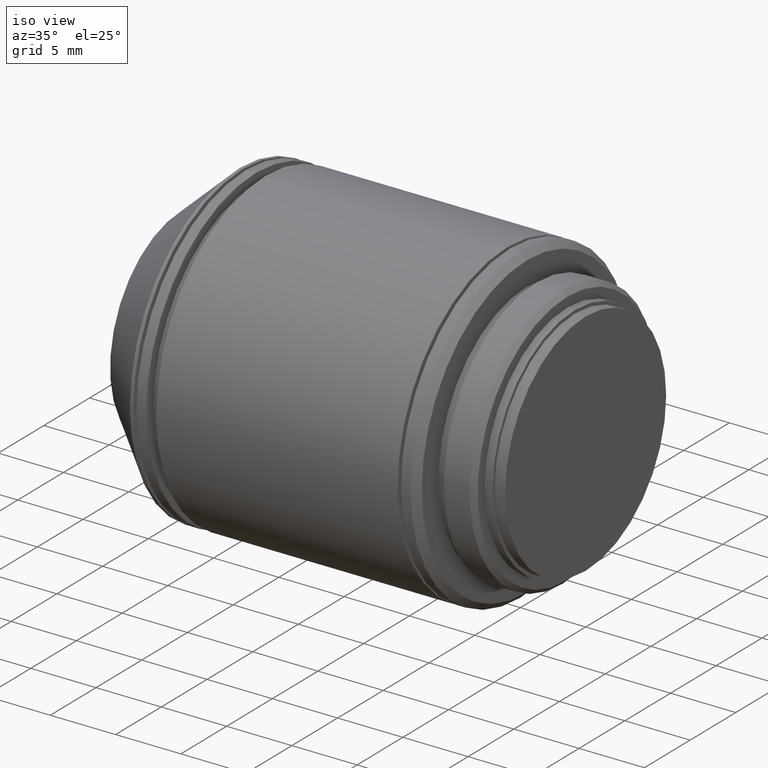
[diagram: clean part render]
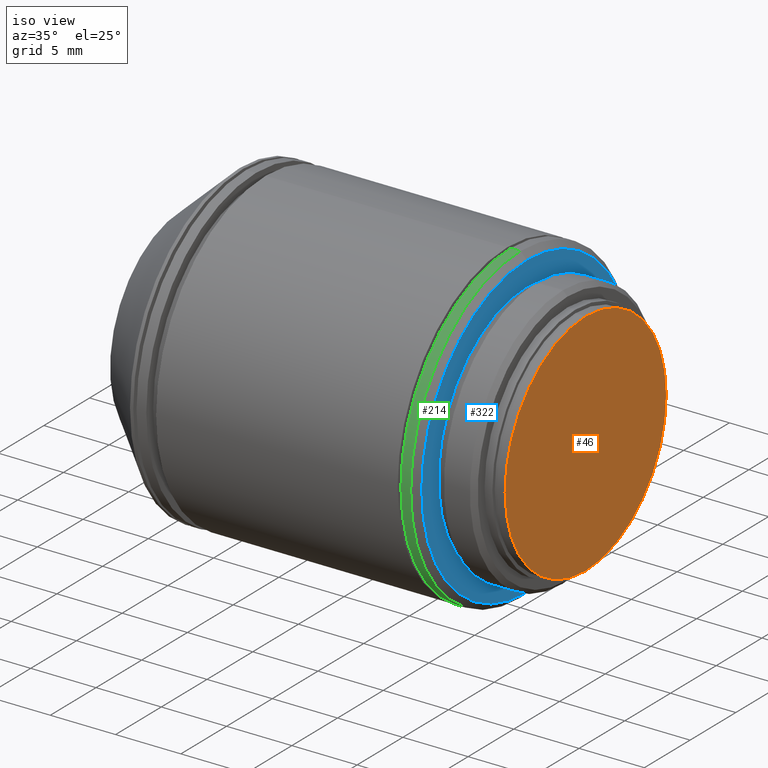
[diagram: same view with three faces highlighted in distinct colors, each labeled with its STEP entity id]
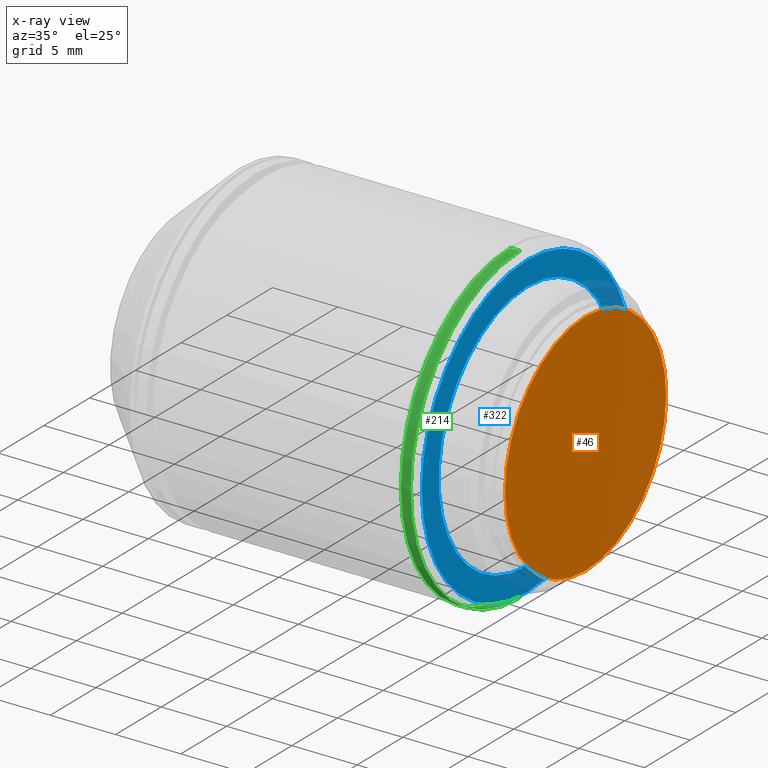
[diagram: x-ray of the same camera — body ghosted, the three highlighted faces saturated]
A machine part, iso view with three faces highlighted in distinct colors.
The next image is the same camera in x-ray (body ghosted, the three faces saturated) — at least one of them is partly hidden behind the body in this view.
Their STEP definitions:

[orange] entity #46 — the highlighted planar face has unit normal (1, 0, 0).
#6 = AXIS2_PLACEMENT_3D ( 'NONE', #924, #814, #827 ) ;
#46 = ADVANCED_FACE ( 'NONE', ( #1005 ), #1090, .T. ) ;
#65 = VERTEX_POINT ( 'NONE', #1102 ) ;
#67 = CARTESIAN_POINT ( 'NONE',  ( 0.000000000000000000, 0.000000000000000000, 0.000000000000000000 ) ) ;
#73 = EDGE_CURVE ( 'NONE', #65, #888, #719, .T. ) ;
#129 = AXIS2_PLACEMENT_3D ( 'NONE', #480, #654, #496 ) ;
#145 = CIRCLE ( 'NONE', #129, 8.810000000000000497 ) ;
#229 = AXIS2_PLACEMENT_3D ( 'NONE', #67, #592, #948 ) ;
#366 = EDGE_LOOP ( 'NONE', ( #940, #563 ) ) ;
#480 = CARTESIAN_POINT ( 'NONE',  ( 0.000000000000000000, 0.000000000000000000, 0.000000000000000000 ) ) ;
#496 = DIRECTION ( 'NONE',  ( 0.000000000000000000, 0.000000000000000000, -1.000000000000000000 ) ) ;
#563 = ORIENTED_EDGE ( 'NONE', *, *, #73, .T. ) ;
#592 = DIRECTION ( 'NONE',  ( 1.000000000000000000, 0.000000000000000000, 0.000000000000000000 ) ) ;
#654 = DIRECTION ( 'NONE',  ( 1.000000000000000000, 0.000000000000000000, 0.000000000000000000 ) ) ;
#719 = CIRCLE ( 'NONE', #229, 8.810000000000000497 ) ;
#814 = DIRECTION ( 'NONE',  ( 1.000000000000000000, 0.000000000000000000, 0.000000000000000000 ) ) ;
#827 = DIRECTION ( 'NONE',  ( 0.000000000000000000, 1.000000000000000000, 0.000000000000000000 ) ) ;
#888 = VERTEX_POINT ( 'NONE', #920 ) ;
#920 = CARTESIAN_POINT ( 'NONE',  ( 0.000000000000000000, 0.000000000000000000, -8.810000000000000497 ) ) ;
#924 = CARTESIAN_POINT ( 'NONE',  ( -8.887111647172880151E-16, 8.810000000000000497, 0.000000000000000000 ) ) ;
#932 = EDGE_CURVE ( 'NONE', #888, #65, #145, .T. ) ;
#940 = ORIENTED_EDGE ( 'NONE', *, *, #932, .T. ) ;
#948 = DIRECTION ( 'NONE',  ( 0.000000000000000000, 0.000000000000000000, -1.000000000000000000 ) ) ;
#1005 = FACE_OUTER_BOUND ( 'NONE', #366, .T. ) ;
#1090 = PLANE ( 'NONE',  #6 ) ;
#1102 = CARTESIAN_POINT ( 'NONE',  ( 0.000000000000000000, 1.078913830048819953E-15, 8.810000000000000497 ) ) ;

[blue] entity #322 — the highlighted planar face has unit normal (1, 0, 0).
#26 = CIRCLE ( 'NONE', #235, 11.50000000000000000 ) ;
#41 = CIRCLE ( 'NONE', #290, 9.660000000000000142 ) ;
#47 = CARTESIAN_POINT ( 'NONE',  ( -4.500000000000000000, 0.000000000000000000, 0.000000000000000000 ) ) ;
#68 = DIRECTION ( 'NONE',  ( 1.000000000000000000, 0.000000000000000000, 0.000000000000000000 ) ) ;
#104 = VERTEX_POINT ( 'NONE', #228 ) ;
#110 = EDGE_LOOP ( 'NONE', ( #475, #1088 ) ) ;
#150 = DIRECTION ( 'NONE',  ( 0.000000000000000000, 1.000000000000000000, 0.000000000000000000 ) ) ;
#151 = DIRECTION ( 'NONE',  ( 0.000000000000000000, 0.000000000000000000, -1.000000000000000000 ) ) ;
#172 = ORIENTED_EDGE ( 'NONE', *, *, #443, .T. ) ;
#223 = FACE_BOUND ( 'NONE', #110, .T. ) ;
#228 = CARTESIAN_POINT ( 'NONE',  ( -4.500000000000000000, 0.000000000000000000, 11.50000000000000000 ) ) ;
#235 = AXIS2_PLACEMENT_3D ( 'NONE', #857, #936, #151 ) ;
#258 = CARTESIAN_POINT ( 'NONE',  ( -4.500000000000000000, 1.183008807976341910E-15, 9.660000000000000142 ) ) ;
#268 = AXIS2_PLACEMENT_3D ( 'NONE', #1091, #293, #907 ) ;
#290 = AXIS2_PLACEMENT_3D ( 'NONE', #502, #68, #441 ) ;
#293 = DIRECTION ( 'NONE',  ( 1.000000000000000000, 0.000000000000000000, 0.000000000000000000 ) ) ;
#302 = DIRECTION ( 'NONE',  ( 0.000000000000000000, 0.000000000000000000, -1.000000000000000000 ) ) ;
#307 = DIRECTION ( 'NONE',  ( 1.000000000000000000, 0.000000000000000000, 0.000000000000000000 ) ) ;
#312 = EDGE_CURVE ( 'NONE', #1026, #561, #776, .T. ) ;
#320 = CIRCLE ( 'NONE', #730, 11.50000000000000000 ) ;
#322 = ADVANCED_FACE ( 'NONE', ( #1070, #223 ), #573, .T. ) ;
#334 = CARTESIAN_POINT ( 'NONE',  ( -4.500000000000000000, 0.000000000000000000, -9.660000000000000142 ) ) ;
#373 = CARTESIAN_POINT ( 'NONE',  ( -4.500000000000000000, 1.438959988998139963E-15, -11.50000000000000000 ) ) ;
#391 = DIRECTION ( 'NONE',  ( 1.000000000000000000, 0.000000000000000000, 0.000000000000000000 ) ) ;
#441 = DIRECTION ( 'NONE',  ( 0.000000000000000000, 0.000000000000000000, -1.000000000000000000 ) ) ;
#443 = EDGE_CURVE ( 'NONE', #766, #104, #320, .T. ) ;
#475 = ORIENTED_EDGE ( 'NONE', *, *, #607, .F. ) ;
#500 = CARTESIAN_POINT ( 'NONE',  ( -4.500000000000000000, 11.50000000000000000, 0.000000000000000000 ) ) ;
#502 = CARTESIAN_POINT ( 'NONE',  ( -4.500000000000000000, 0.000000000000000000, 0.000000000000000000 ) ) ;
#513 = EDGE_LOOP ( 'NONE', ( #703, #172 ) ) ;
#561 = VERTEX_POINT ( 'NONE', #334 ) ;
#573 = PLANE ( 'NONE',  #928 ) ;
#607 = EDGE_CURVE ( 'NONE', #561, #1026, #41, .T. ) ;
#703 = ORIENTED_EDGE ( 'NONE', *, *, #1104, .T. ) ;
#730 = AXIS2_PLACEMENT_3D ( 'NONE', #47, #391, #302 ) ;
#766 = VERTEX_POINT ( 'NONE', #373 ) ;
#776 = CIRCLE ( 'NONE', #268, 9.660000000000000142 ) ;
#857 = CARTESIAN_POINT ( 'NONE',  ( -4.500000000000000000, 0.000000000000000000, 0.000000000000000000 ) ) ;
#907 = DIRECTION ( 'NONE',  ( 0.000000000000000000, 0.000000000000000000, -1.000000000000000000 ) ) ;
#928 = AXIS2_PLACEMENT_3D ( 'NONE', #500, #307, #150 ) ;
#936 = DIRECTION ( 'NONE',  ( 1.000000000000000000, 0.000000000000000000, 0.000000000000000000 ) ) ;
#1026 = VERTEX_POINT ( 'NONE', #258 ) ;
#1070 = FACE_OUTER_BOUND ( 'NONE', #513, .T. ) ;
#1088 = ORIENTED_EDGE ( 'NONE', *, *, #312, .F. ) ;
#1091 = CARTESIAN_POINT ( 'NONE',  ( -4.500000000000000000, 0.000000000000000000, 0.000000000000000000 ) ) ;
#1104 = EDGE_CURVE ( 'NONE', #104, #766, #26, .T. ) ;

[green] entity #214 — the highlighted cylindrical surface (partial cylindrical patch) has radius 12 mm, axis along (1, 0, 0).
#22 = FACE_OUTER_BOUND ( 'NONE', #707, .T. ) ;
#88 = CARTESIAN_POINT ( 'NONE',  ( -5.000000000000000000, 0.000000000000000000, -12.00000000000000000 ) ) ;
#102 = ORIENTED_EDGE ( 'NONE', *, *, #815, .T. ) ;
#105 = CARTESIAN_POINT ( 'NONE',  ( 35.11960189172815205, 1.469576158976823947E-15, 12.00000000000000000 ) ) ;
#121 = DIRECTION ( 'NONE',  ( 0.000000000000000000, 0.000000000000000000, -1.000000000000000000 ) ) ;
#133 = ORIENTED_EDGE ( 'NONE', *, *, #486, .T. ) ;
#143 = AXIS2_PLACEMENT_3D ( 'NONE', #791, #732, #883 ) ;
#167 = LINE ( 'NONE', #105, #988 ) ;
#175 = CYLINDRICAL_SURFACE ( 'NONE', #1122, 12.00000000000000000 ) ;
#188 = DIRECTION ( 'NONE',  ( 1.000000000000000000, 0.000000000000000000, 0.000000000000000000 ) ) ;
#214 = ADVANCED_FACE ( 'NONE', ( #22 ), #175, .T. ) ;
#218 = VERTEX_POINT ( 'NONE', #630 ) ;
#225 = VERTEX_POINT ( 'NONE', #88 ) ;
#233 = AXIS2_PLACEMENT_3D ( 'NONE', #904, #188, #121 ) ;
#277 = DIRECTION ( 'NONE',  ( 1.000000000000000000, 0.000000000000000000, 0.000000000000000000 ) ) ;
#335 = CIRCLE ( 'NONE', #143, 12.00000000000000000 ) ;
#403 = VECTOR ( 'NONE', #618, 1000.000000000000000 ) ;
#470 = EDGE_CURVE ( 'NONE', #807, #903, #167, .T. ) ;
#474 = LINE ( 'NONE', #1071, #403 ) ;
#486 = EDGE_CURVE ( 'NONE', #807, #218, #335, .T. ) ;
#528 = CARTESIAN_POINT ( 'NONE',  ( 35.11960189172815205, 0.000000000000000000, 0.000000000000000000 ) ) ;
#555 = DIRECTION ( 'NONE',  ( 1.000000000000000000, 0.000000000000000000, 0.000000000000000000 ) ) ;
#618 = DIRECTION ( 'NONE',  ( 1.000000000000000000, 0.000000000000000000, 0.000000000000000000 ) ) ;
#630 = CARTESIAN_POINT ( 'NONE',  ( -5.750000000000000000, 0.000000000000000000, -12.00000000000000000 ) ) ;
#706 = DIRECTION ( 'NONE',  ( 0.000000000000000000, 0.000000000000000000, -1.000000000000000000 ) ) ;
#707 = EDGE_LOOP ( 'NONE', ( #879, #133, #102, #812 ) ) ;
#732 = DIRECTION ( 'NONE',  ( 1.000000000000000000, 0.000000000000000000, 0.000000000000000000 ) ) ;
#733 = EDGE_CURVE ( 'NONE', #903, #225, #1039, .T. ) ;
#791 = CARTESIAN_POINT ( 'NONE',  ( -5.750000000000000000, 0.000000000000000000, 0.000000000000000000 ) ) ;
#807 = VERTEX_POINT ( 'NONE', #813 ) ;
#812 = ORIENTED_EDGE ( 'NONE', *, *, #733, .F. ) ;
#813 = CARTESIAN_POINT ( 'NONE',  ( -5.750000000000000000, 1.469576158976823947E-15, 12.00000000000000000 ) ) ;
#815 = EDGE_CURVE ( 'NONE', #218, #225, #474, .T. ) ;
#879 = ORIENTED_EDGE ( 'NONE', *, *, #470, .F. ) ;
#883 = DIRECTION ( 'NONE',  ( 0.000000000000000000, 0.000000000000000000, -1.000000000000000000 ) ) ;
#903 = VERTEX_POINT ( 'NONE', #1016 ) ;
#904 = CARTESIAN_POINT ( 'NONE',  ( -5.000000000000000000, 0.000000000000000000, 0.000000000000000000 ) ) ;
#988 = VECTOR ( 'NONE', #555, 1000.000000000000000 ) ;
#1016 = CARTESIAN_POINT ( 'NONE',  ( -5.000000000000000000, 1.469576158976823947E-15, 12.00000000000000000 ) ) ;
#1039 = CIRCLE ( 'NONE', #233, 12.00000000000000000 ) ;
#1071 = CARTESIAN_POINT ( 'NONE',  ( 35.11960189172815205, 0.000000000000000000, -12.00000000000000000 ) ) ;
#1122 = AXIS2_PLACEMENT_3D ( 'NONE', #528, #277, #706 ) ;